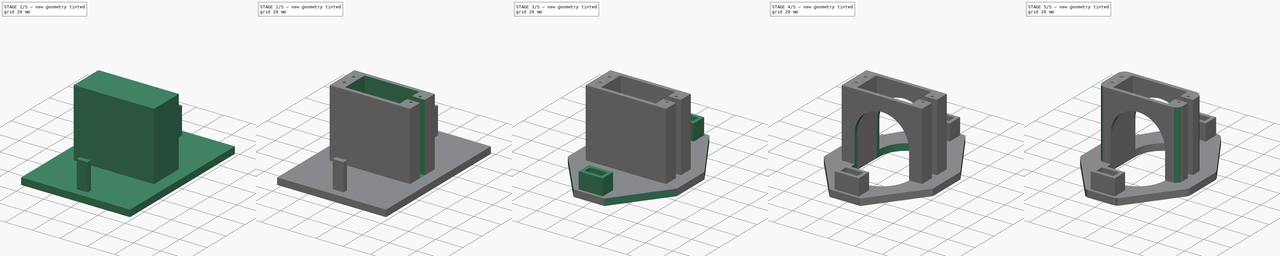
[diagram: build sequence overview — one tinted view per stage of 5, left to right]
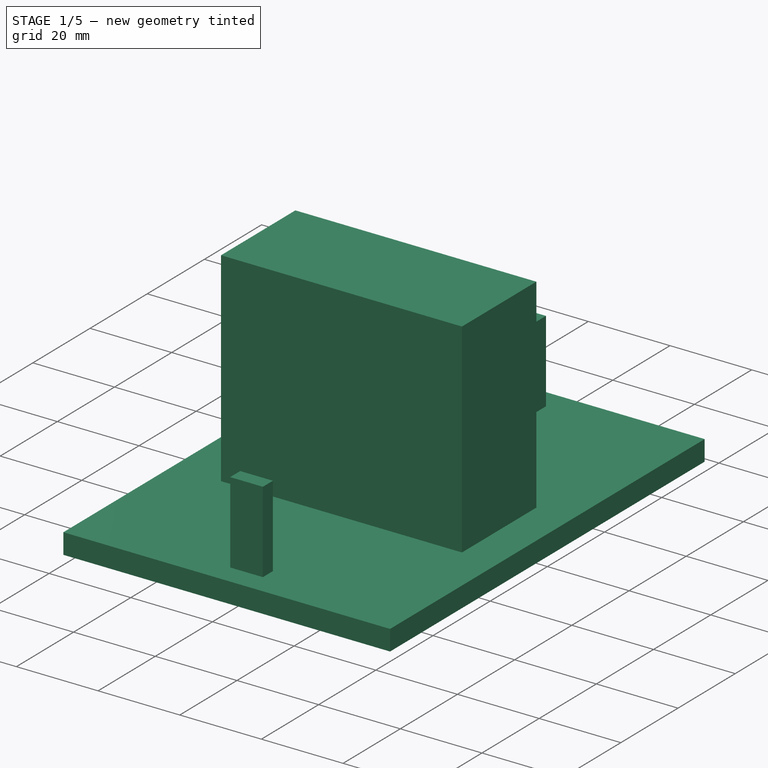
[diagram: stage 1 of 5 — iso view after this stage's code; geometry added in this stage tinted green]
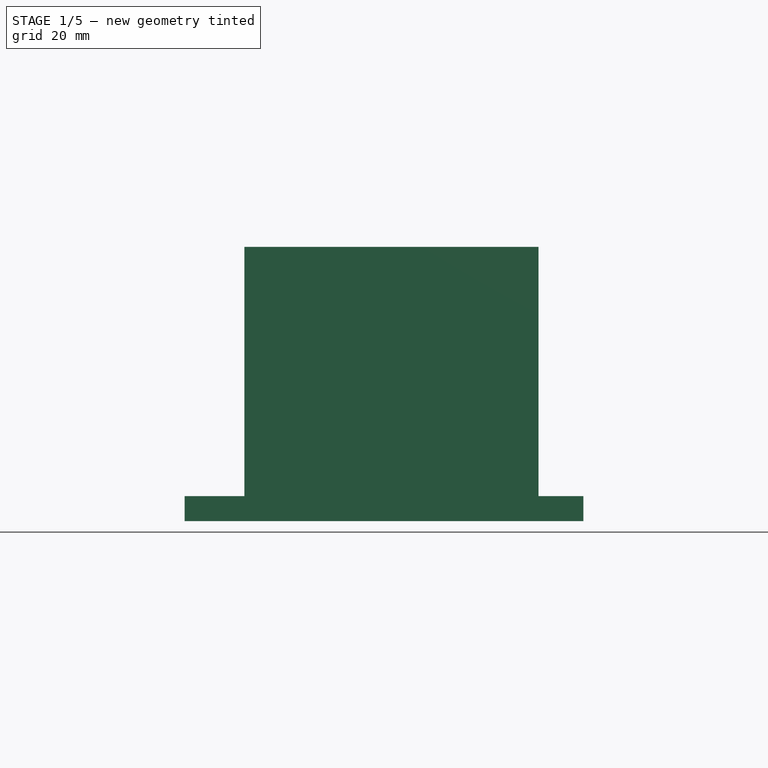
[diagram: stage 1 of 5 — front view after this stage's code; geometry added in this stage tinted green]
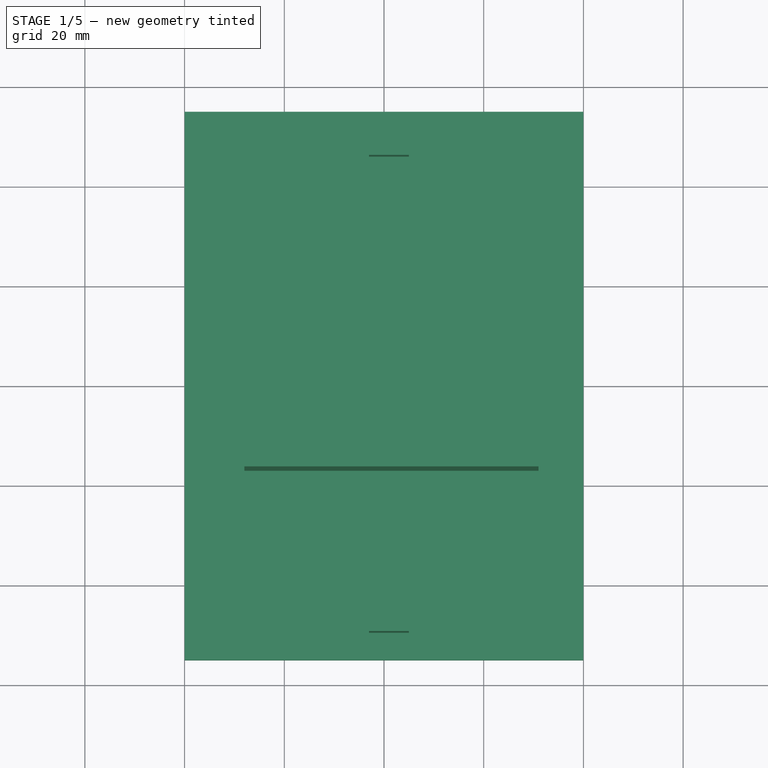
[diagram: stage 1 of 5 — top view after this stage's code; geometry added in this stage tinted green]
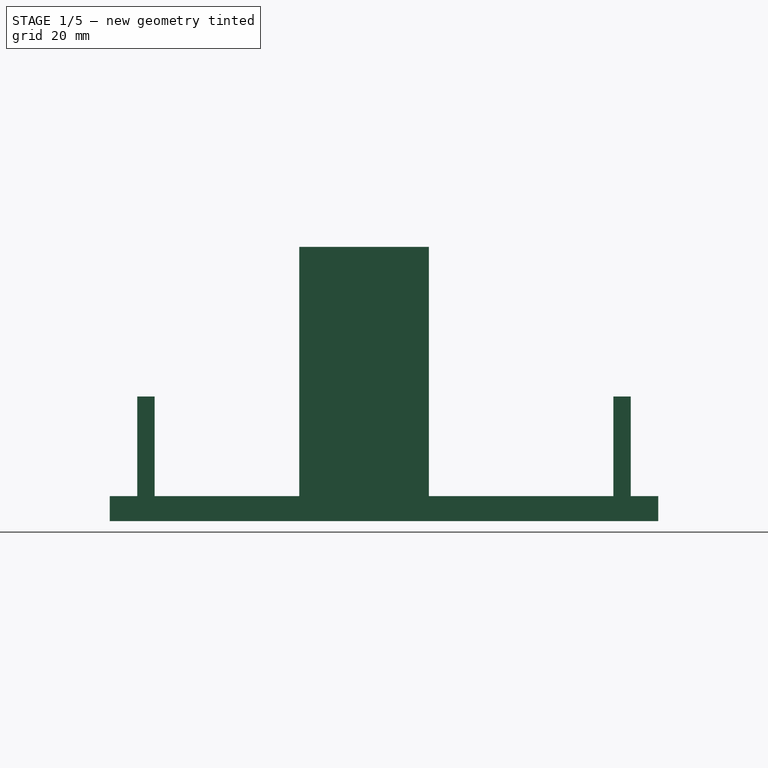
[diagram: stage 1 of 5 — right view after this stage's code; geometry added in this stage tinted green]
FCSTD DOCUMENT  (FreeCAD 0.21R33771 (Git))
Label: support_servomoteur-v2
License: All rights reserved
LicenseURL: https://en.wikipedia.org/wiki/All_rights_reserved
objects: Sketcher::SketchObject×13, PartDesign::Pocket×9, PartDesign::Pad×4, PartDesign::Fillet×2, PartDesign::Body×1
note: 44 computed .brp shape members not serialized (recipe doc carries the construction recipe); baked Part::Feature solids carry a one-line shape summary decoded from their .brp

FEATURE [Sketcher::SketchObject] Sketch
  FullyConstrained = true
  MapMode = 5
  Support = -> [XY_Plane]
  sketch-geometry (4):
    g0: LineSegment StartX=-40 StartY=-55 StartZ=0 EndX=40 EndY=-55 EndZ=0
    g1: LineSegment StartX=40 StartY=-55 StartZ=0 EndX=40 EndY=55 EndZ=0
    g2: LineSegment StartX=40 StartY=55 StartZ=0 EndX=-40 EndY=55 EndZ=0
    g3: LineSegment StartX=-40 StartY=55 StartZ=0 EndX=-40 EndY=-55 EndZ=0
  constraints (11):
    c: Coincident(g0,g1)
    c: Coincident(g1,g2)
    c: Coincident(g2,g3)
    c: Coincident(g3,g0)
    c: Horizontal(g0)
    c: Horizontal(g2)
    c: Vertical(g1)
    c: Vertical(g3)
    c: DistanceX(g2,g2) = 80
    c: DistanceY(g1,g1) = 110
    c: Symmetric(g2,g0,g-1)
FEATURE [PartDesign::Pad] Pad
  Direction = (0,0,1)
  Length = 5
  Length2 = 10
  Profile = -> Sketch
  ReferenceAxis = -> Sketch [N_Axis]
  Type = 0
FEATURE [Sketcher::SketchObject] Sketch001
  ExternalGeometry = -> [Pad]
  FullyConstrained = true
  MapMode = 5
  Placement = pos=(0,0,5) rot=(0,0,1;0rad)
  Support = -> [Pad]
  sketch-geometry (8):
    g0: LineSegment StartX=-3 StartY=49.5 StartZ=0 EndX=5 EndY=49.5 EndZ=0
    g1: LineSegment StartX=5 StartY=49.5 StartZ=0 EndX=5 EndY=46 EndZ=0
    g2: LineSegment StartX=5 StartY=46 StartZ=0 EndX=-3 EndY=46 EndZ=0
    g3: LineSegment StartX=-3 StartY=46 StartZ=0 EndX=-3 EndY=49.5 EndZ=0
    g4: LineSegment StartX=-3 StartY=-46 StartZ=0 EndX=5 EndY=-46 EndZ=0
    g5: LineSegment StartX=5 StartY=-46 StartZ=0 EndX=5 EndY=-49.5 EndZ=0
    g6: LineSegment StartX=5 StartY=-49.5 StartZ=0 EndX=-3 EndY=-49.5 EndZ=0
    g7: LineSegment StartX=-3 StartY=-49.5 StartZ=0 EndX=-3 EndY=-46 EndZ=0
  constraints (23):
    c: Coincident(g0,g1)
    c: Coincident(g1,g2)
    c: Coincident(g2,g3)
    c: Coincident(g3,g0)
    c: Horizontal(g0)
    c: Horizontal(g2)
    c: Vertical(g1)
    c: Vertical(g3)
    c: Coincident(g4,g5)
    c: Coincident(g5,g6)
    c: Coincident(g6,g7)
    c: Coincident(g7,g4)
    c: Horizontal(g4)
    c: Horizontal(g6)
    c: Vertical(g5)
    c: Vertical(g7)
    c: Equal(g1,g5)
    c: Equal(g0,g4)
    c: Symmetric(g2,g4,g-1)
    c: DistanceX(g0,g-4) = 35
    c: DistanceX(g0,g0) = 8
    c: DistanceY(g3,g3) = 3.5
    c: DistanceY(g4,g1) = 92
FEATURE [PartDesign::Pad] Pad001
  BaseFeature = -> Pad
  Direction = (0,0,1)
  Length = 20
  Length2 = 10
  Profile = -> Sketch001
  ReferenceAxis = -> Sketch001 [N_Axis]
  Type = 0
FEATURE [Sketcher::SketchObject] Sketch002
  ExternalGeometry = -> [Pad001]
  FullyConstrained = true
  MapMode = 5
  Placement = pos=(0,0,5) rot=(0,0,1;0rad)
  Support = -> [Pad001]
  sketch-geometry (4):
    g0: LineSegment StartX=-28 StartY=9 StartZ=0 EndX=31 EndY=9 EndZ=0
    g1: LineSegment StartX=31 StartY=9 StartZ=0 EndX=31 EndY=-17 EndZ=0
    g2: LineSegment StartX=31 StartY=-17 StartZ=0 EndX=-28 EndY=-17 EndZ=0
    g3: LineSegment StartX=-28 StartY=-17 StartZ=0 EndX=-28 EndY=9 EndZ=0
  constraints (12):
    c: Coincident(g0,g1)
    c: Coincident(g1,g2)
    c: Coincident(g2,g3)
    c: Coincident(g3,g0)
    c: Horizontal(g0)
    c: Horizontal(g2)
    c: Vertical(g1)
    c: Vertical(g3)
    c: DistanceX(g0,g0) = 59
    c: DistanceY(g1,g1) = 26
    c: DistanceY(g-1,g0) = 9
    c: DistanceX(g0,g-4) = 9
FEATURE [PartDesign::Pad] Pad002
  BaseFeature = -> Pad001
  Direction = (0,0,1)
  Length = 50
  Length2 = 10
  Profile = -> Sketch002
  ReferenceAxis = -> Sketch002 [N_Axis]
  Type = 0
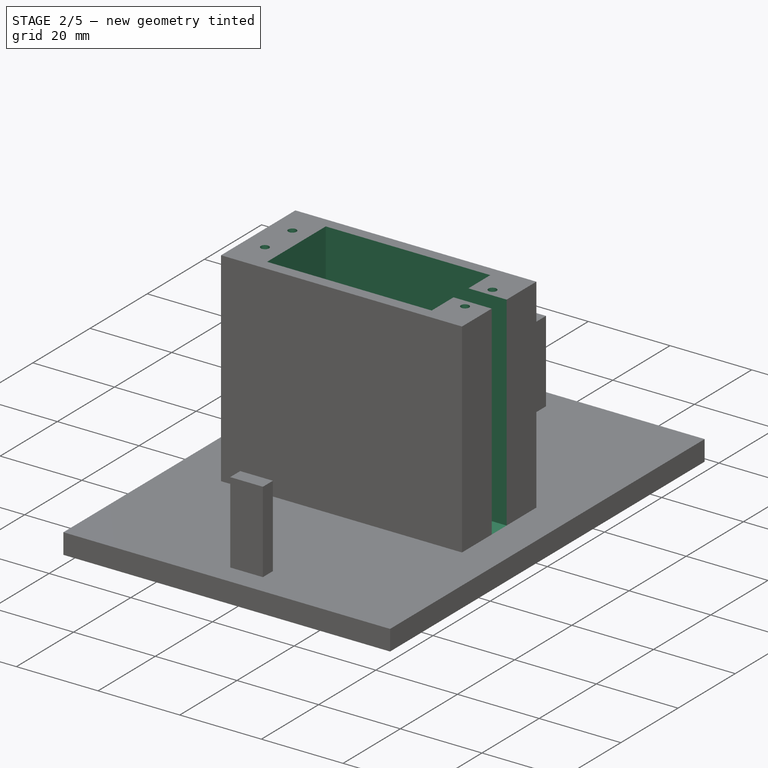
[diagram: stage 2 of 5 — iso view after this stage's code; geometry added in this stage tinted green]
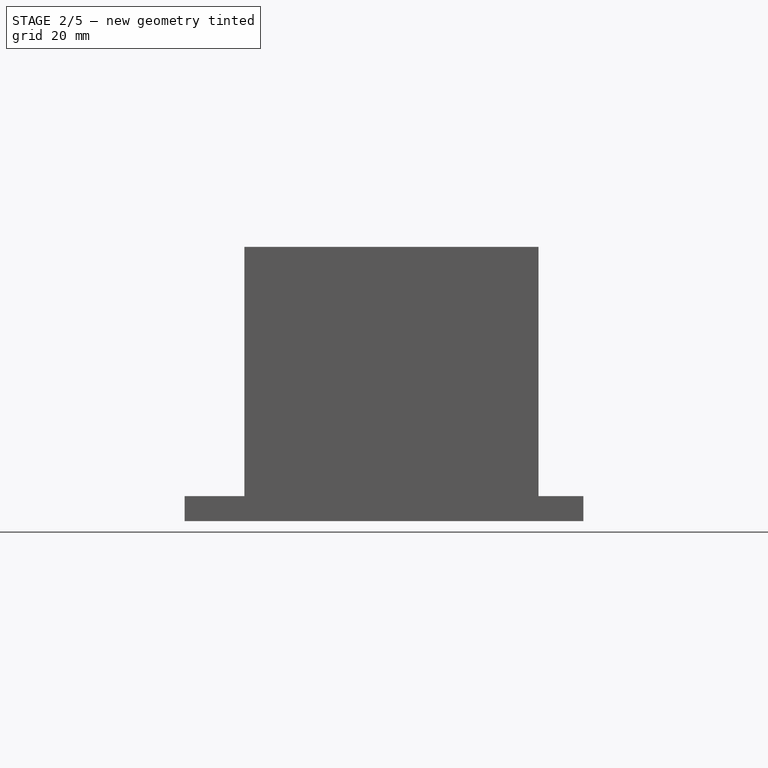
[diagram: stage 2 of 5 — front view after this stage's code; geometry added in this stage tinted green]
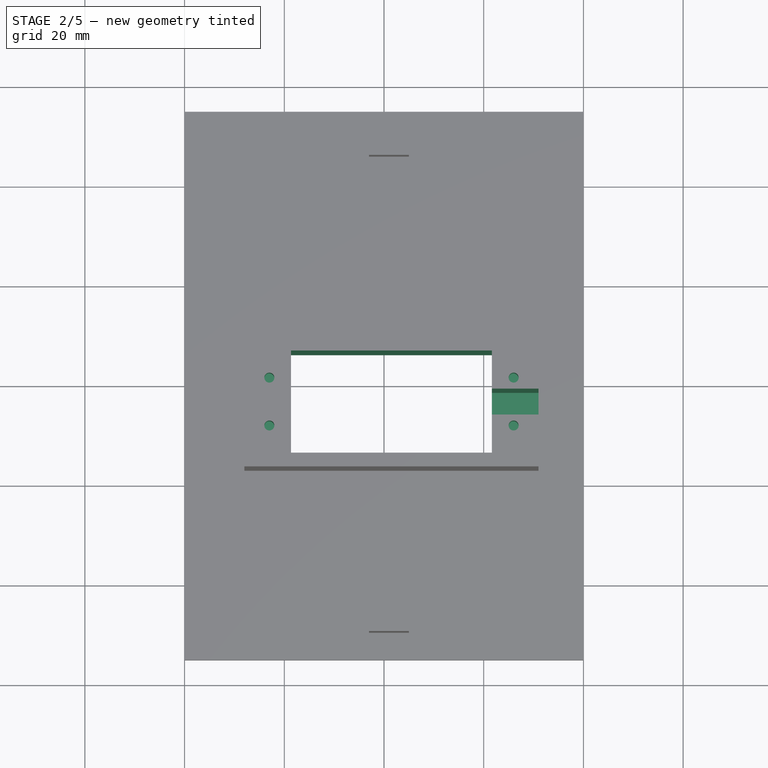
[diagram: stage 2 of 5 — top view after this stage's code; geometry added in this stage tinted green]
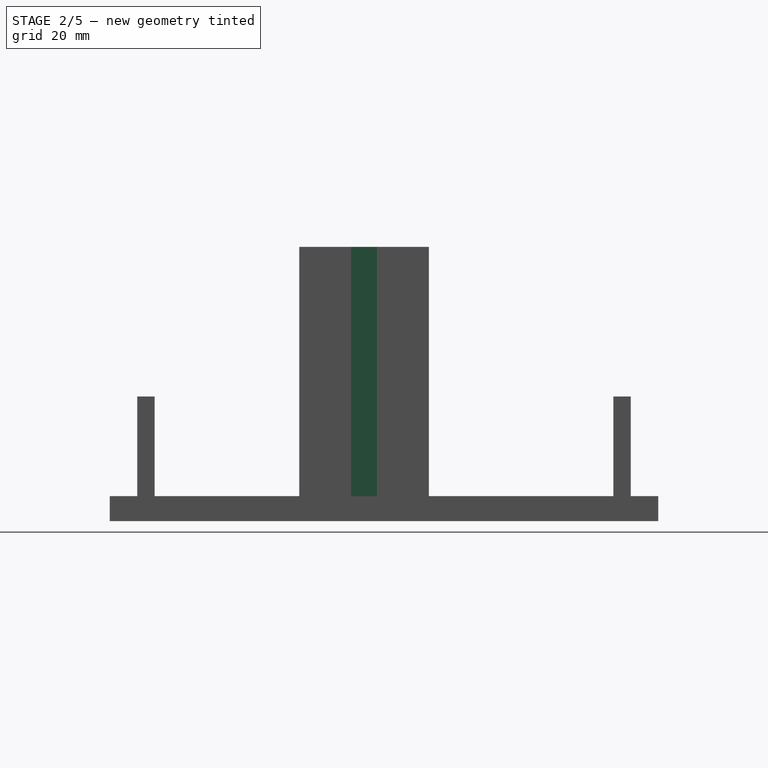
[diagram: stage 2 of 5 — right view after this stage's code; geometry added in this stage tinted green]
FEATURE [Sketcher::SketchObject] Sketch003
  ExternalGeometry = -> [Pad002]
  FullyConstrained = true
  MapMode = 5
  Placement = pos=(0,0,0) rot=(1,0,0;3.14159rad)
  Support = -> [Pad002]
  sketch-geometry (4):
    g0: LineSegment StartX=21.65 StartY=14.25 StartZ=0 EndX=-18.65 EndY=14.25 EndZ=0
    g1: LineSegment StartX=-18.65 StartY=14.25 StartZ=0 EndX=-18.65 EndY=-6.25 EndZ=0
    g2: LineSegment StartX=-18.65 StartY=-6.25 StartZ=0 EndX=21.65 EndY=-6.25 EndZ=0
    g3: LineSegment StartX=21.65 StartY=-6.25 StartZ=0 EndX=21.65 EndY=14.25 EndZ=0
  constraints (14):
    c: Coincident(g0,g1)
    c: Coincident(g1,g2)
    c: Coincident(g2,g3)
    c: Coincident(g3,g0)
    c: Horizontal(g0)
    c: Horizontal(g2)
    c: Vertical(g1)
    c: Vertical(g3)
    c: DistanceX(g2,g2) = 40.3
    c: DistanceY(g3,g3) = 20.5
    c: DistanceY(g0,g-14) = 2.75
    c: DistanceX(g0,g-14) = 9.35
    c: DistanceY(g-14,g-14) = 26
    c: DistanceX(g-11,g-11) = 59
FEATURE [PartDesign::Pocket] Pocket
  BaseFeature = -> Pad002
  Direction = (0,0,1)
  Length = 50
  Length2 = 5
  Profile = -> Sketch003
  ReferenceAxis = -> Sketch003 [N_Axis]
  Type = 1
FEATURE [Sketcher::SketchObject] Sketch004
  ExternalGeometry = -> [Pocket]
  FullyConstrained = true
  MapMode = 5
  Placement = pos=(31,0,0) rot=(0.57735,0.57735,0.57735;2.0944rad)
  Support = -> [Pocket]
  sketch-geometry (6):
    g0: LineSegment StartX=-6.6 StartY=5 StartZ=0 EndX=-1.4 EndY=5 EndZ=0
    g1: LineSegment StartX=-1.4 StartY=5 StartZ=0 EndX=-1.4 EndY=55 EndZ=0
    g2: LineSegment StartX=-1.4 StartY=55 StartZ=0 EndX=-6.6 EndY=55 EndZ=0
    g3: LineSegment StartX=-6.6 StartY=55 StartZ=0 EndX=-6.6 EndY=5 EndZ=0
    g4: LineSegment StartX=-17 StartY=55 StartZ=0 EndX=-6.6 EndY=55 EndZ=0
    g5: LineSegment StartX=-1.4 StartY=55 StartZ=0 EndX=9 EndY=55 EndZ=0
  constraints (16):
    c: Coincident(g0,g1)
    c: Coincident(g1,g2)
    c: Coincident(g2,g3)
    c: Coincident(g3,g0)
    c: Horizontal(g0)
    c: Horizontal(g2)
    c: Vertical(g1)
    c: Vertical(g3)
    c: PointOnObject(g0,g-6)
    c: PointOnObject(g1,g-3)
    c: DistanceX(g2,g2) = 5.2
    c: Coincident(g4,g-5)
    c: Coincident(g4,g2)
    c: Coincident(g5,g1)
    c: Coincident(g5,g-4)
    c: Equal(g5,g4)
FEATURE [PartDesign::Pocket] Pocket001
  BaseFeature = -> Pocket
  Direction = (-1,0,0)
  Length = 10
  Length2 = 5
  Profile = -> Sketch004
  ReferenceAxis = -> Sketch004 [N_Axis]
  Type = 0
FEATURE [Sketcher::SketchObject] Sketch005
  ExternalGeometry = -> [Pocket001]
  FullyConstrained = true
  MapMode = 5
  Placement = pos=(0,0,55) rot=(0,0,1;0rad)
  Support = -> [Pocket001]
  sketch-geometry (8):
    g0: Circle CenterX=-23 CenterY=0.8 CenterZ=0 NormalX=0 NormalY=0 NormalZ=1 AngleXU=0 Radius=1
    g1: Circle CenterX=-23 CenterY=-8.8 CenterZ=0 NormalX=0 NormalY=0 NormalZ=1 AngleXU=0 Radius=1
    g2: Circle CenterX=26 CenterY=-8.8 CenterZ=0 NormalX=0 NormalY=0 NormalZ=1 AngleXU=0 Radius=1
    g3: Circle CenterX=26 CenterY=0.8 CenterZ=0 NormalX=0 NormalY=0 NormalZ=1 AngleXU=0 Radius=1
    g4: LineSegment StartX=-23 StartY=0.8 StartZ=0 EndX=-28 EndY=0.8 EndZ=0
    g5: LineSegment StartX=-23 StartY=0.8 StartZ=0 EndX=-23 EndY=9 EndZ=0
    g6: LineSegment StartX=-23 StartY=-8.8 StartZ=0 EndX=-23 EndY=-17 EndZ=0
    g7: LineSegment StartX=26 StartY=0.8 StartZ=0 EndX=31 EndY=0.8 EndZ=0
  constraints (24):
    c: Equal(g3,g2)
    c: Equal(g0,g3)
    c: Equal(g3,g1)
    c: Vertical(g3,g2)
    c: Vertical(g0,g1)
    c: Horizontal(g0,g3)
    c: Horizontal(g1,g2)
    c: DistanceY(g2,g3) = 9.6
    c: DistanceX(g0,g3) = 49
    c: Coincident(g4,g0)
    c: PointOnObject(g4,g-5)
    c: Horizontal(g4)
    c: Coincident(g5,g0)
    c: PointOnObject(g5,g-3)
    c: Vertical(g5)
    c: Coincident(g6,g1)
    c: PointOnObject(g6,g-6)
    c: Vertical(g6)
    c: Equal(g5,g6)
    c: Diameter(g0) = 2
    c: Coincident(g7,g3)
    c: PointOnObject(g7,g-4)
    c: Horizontal(g7)
    c: Equal(g7,g4)
FEATURE [PartDesign::Pocket] Pocket002
  BaseFeature = -> Pocket001
  Direction = (0,0,-1)
  Length = 10
  Length2 = 5
  Profile = -> Sketch005
  ReferenceAxis = -> Sketch005 [N_Axis]
  Type = 0
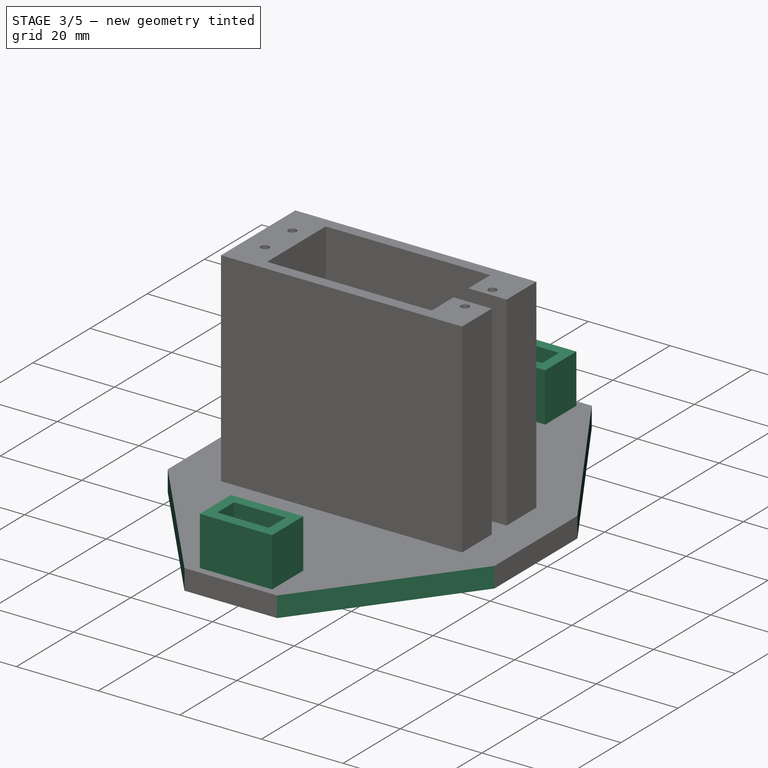
[diagram: stage 3 of 5 — iso view after this stage's code; geometry added in this stage tinted green]
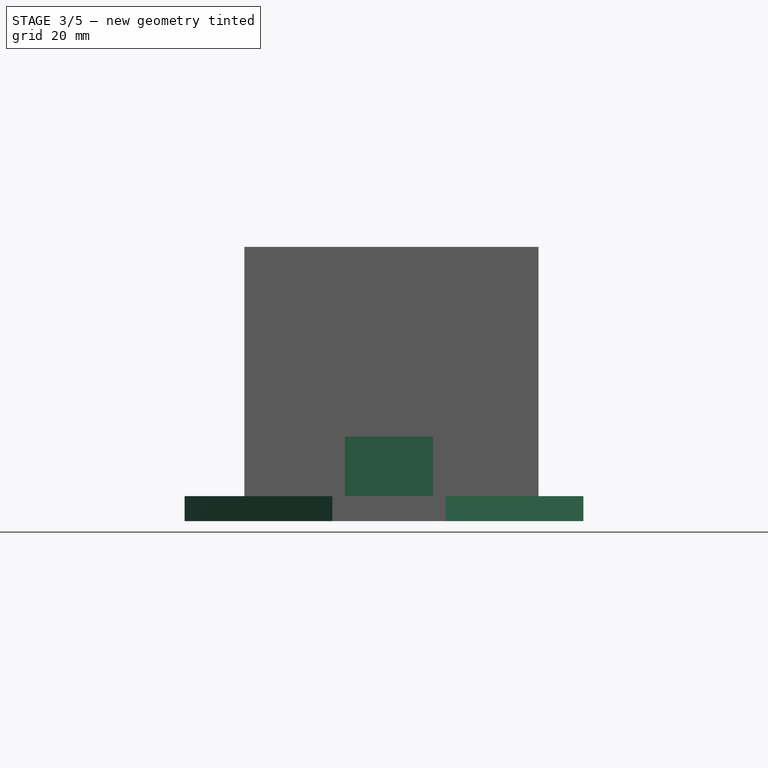
[diagram: stage 3 of 5 — front view after this stage's code; geometry added in this stage tinted green]
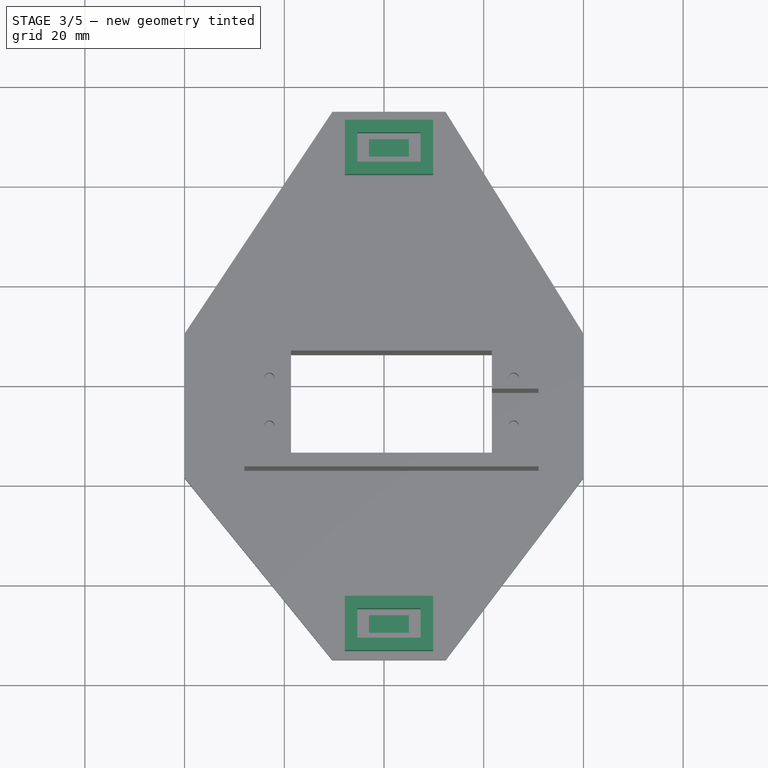
[diagram: stage 3 of 5 — top view after this stage's code; geometry added in this stage tinted green]
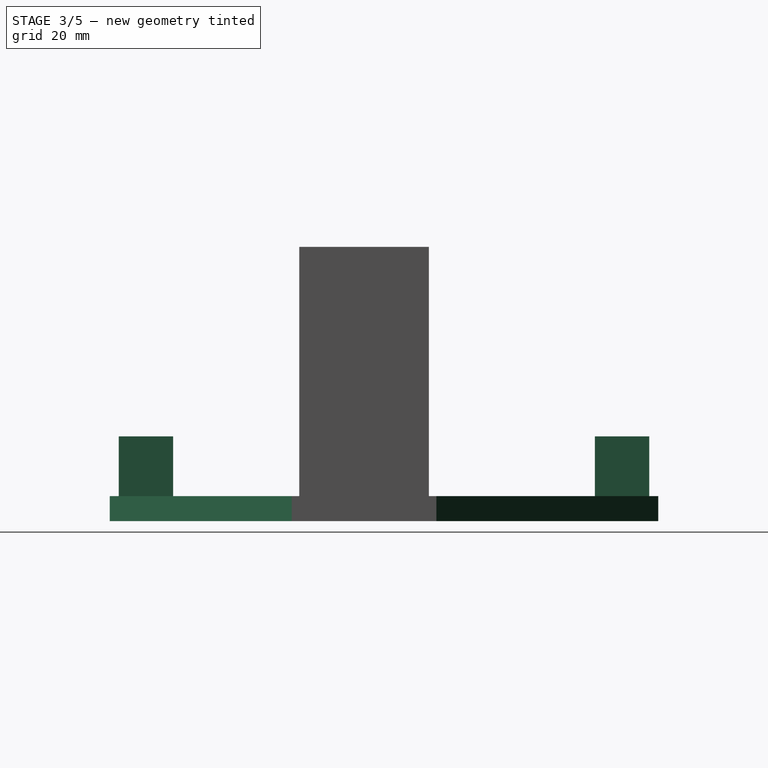
[diagram: stage 3 of 5 — right view after this stage's code; geometry added in this stage tinted green]
FEATURE [Sketcher::SketchObject] Sketch006
  ExternalGeometry = -> [Pocket002]
  FullyConstrained = true
  MapMode = 5
  Placement = pos=(0,0,5) rot=(0,0,1;0rad)
  Support = -> [Pocket002]
  sketch-geometry (32):
    g0: LineSegment StartX=-7.85 StartY=53.2 StartZ=0 EndX=9.85 EndY=53.2 EndZ=0
    g1: LineSegment StartX=9.85 StartY=53.2 StartZ=0 EndX=9.85 EndY=42.3 EndZ=0
    g2: LineSegment StartX=9.85 StartY=42.3 StartZ=0 EndX=-7.85 EndY=42.3 EndZ=0
    g3: LineSegment StartX=-7.85 StartY=42.3 StartZ=0 EndX=-7.85 EndY=53.2 EndZ=0
    g4: LineSegment StartX=-5.35 StartY=50.7 StartZ=0 EndX=7.35 EndY=50.7 EndZ=0
    g5: LineSegment StartX=7.35 StartY=50.7 StartZ=0 EndX=7.35 EndY=44.8 EndZ=0
    g6: LineSegment StartX=7.35 StartY=44.8 StartZ=0 EndX=-5.35 EndY=44.8 EndZ=0
    g7: LineSegment StartX=-5.35 StartY=44.8 StartZ=0 EndX=-5.35 EndY=50.7 EndZ=0
    g8: LineSegment StartX=-7.85 StartY=-42.3 StartZ=0 EndX=9.85 EndY=-42.3 EndZ=0
    g9: LineSegment StartX=9.85 StartY=-42.3 StartZ=0 EndX=9.85 EndY=-53.2 EndZ=0
    g10: LineSegment StartX=9.85 StartY=-53.2 StartZ=0 EndX=-7.85 EndY=-53.2 EndZ=0
    g11: LineSegment StartX=-7.85 StartY=-53.2 StartZ=0 EndX=-7.85 EndY=-42.3 EndZ=0
    g12: LineSegment StartX=-5.35 StartY=-44.8 StartZ=0 EndX=7.35 EndY=-44.8 EndZ=0
    g13: LineSegment StartX=7.35 StartY=-44.8 StartZ=0 EndX=7.35 EndY=-50.7 EndZ=0
    g14: LineSegment StartX=7.35 StartY=-50.7 StartZ=0 EndX=-5.35 EndY=-50.7 EndZ=0
    g15: LineSegment StartX=-5.35 StartY=-50.7 StartZ=0 EndX=-5.35 EndY=-44.8 EndZ=0
    g16: LineSegment StartX=5 StartY=-46 StartZ=0 EndX=5 EndY=-44.8 EndZ=0
    g17: LineSegment StartX=5 StartY=-49.5 StartZ=0 EndX=5 EndY=-50.7 EndZ=0
    g18: LineSegment StartX=5 StartY=-46 StartZ=0 EndX=7.35 EndY=-46 EndZ=0
    g19: LineSegment StartX=-3 StartY=-46 StartZ=0 EndX=-5.35 EndY=-46 EndZ=0
    g20: LineSegment StartX=7.35 StartY=-44.8 StartZ=0 EndX=7.35 EndY=-42.3 EndZ=0
    g21: LineSegment StartX=7.35 StartY=-44.8 StartZ=0 EndX=9.85 EndY=-44.8 EndZ=0
    g22: LineSegment StartX=-5.35 StartY=-44.8 StartZ=0 EndX=-7.85 EndY=-44.8 EndZ=0
    g23: LineSegment StartX=7.35 StartY=-50.7 StartZ=0 EndX=7.35 EndY=-53.2 EndZ=0
    g24: LineSegment StartX=-5.35 StartY=50.7 StartZ=0 EndX=-7.85 EndY=50.7 EndZ=0
    g25: LineSegment StartX=-3 StartY=49.5 StartZ=0 EndX=-5.35 EndY=49.5 EndZ=0
    g26: LineSegment StartX=5 StartY=49.5 StartZ=0 EndX=7.35 EndY=49.5 EndZ=0
    g27: LineSegment StartX=7.35 StartY=50.7 StartZ=0 EndX=9.85 EndY=50.7 EndZ=0
    g28: LineSegment StartX=7.35 StartY=50.7 StartZ=0 EndX=7.35 EndY=53.2 EndZ=0
    g29: LineSegment StartX=7.35 StartY=44.8 StartZ=0 EndX=7.35 EndY=42.3 EndZ=0
    g30: LineSegment StartX=5 StartY=49.5 StartZ=0 EndX=5 EndY=50.7 EndZ=0
    g31: LineSegment StartX=5 StartY=46 StartZ=0 EndX=5 EndY=44.8 EndZ=0
  constraints (96):
    c: Coincident(g0,g1)
    c: Coincident(g1,g2)
    c: Coincident(g2,g3)
    c: Coincident(g3,g0)
    c: Horizontal(g0)
    c: Horizontal(g2)
    c: Vertical(g1)
    c: Vertical(g3)
    c: Coincident(g4,g5)
    c: Coincident(g5,g6)
    c: Coincident(g6,g7)
    c: Coincident(g7,g4)
    c: Horizontal(g4)
    c: Horizontal(g6)
    c: Vertical(g5)
    c: Vertical(g7)
    c: Coincident(g8,g9)
    c: Coincident(g9,g10)
    c: Coincident(g10,g11)
    c: Coincident(g11,g8)
    c: Horizontal(g8)
    c: Horizontal(g10)
    c: Vertical(g9)
    c: Vertical(g11)
    c: Coincident(g12,g13)
    c: Coincident(g13,g14)
    c: Coincident(g14,g15)
    c: Coincident(g15,g12)
    c: Horizontal(g12)
    c: Horizontal(g14)
    c: Vertical(g13)
    c: Vertical(g15)
    c: DistanceX(g12,g12) = 12.7
    c: DistanceY(g13,g13) = 5.9
    c: Equal(g12,g6)
    c: Equal(g13,g5)
    c: DistanceY(g12,g8) = 2.5
    c: DistanceX(g12,g8) = 2.5
    c: Coincident(g16,g-8)
    c: PointOnObject(g16,g12)
    c: Vertical(g16)
    c: Coincident(g17,g-9)
    c: PointOnObject(g17,g14)
    c: Vertical(g17)
    c: Coincident(g18,g16)
    c: PointOnObject(g18,g13)
    c: Horizontal(g18)
    c: Coincident(g19,g-10)
    c: PointOnObject(g19,g15)
    c: Horizontal(g19)
    c: Coincident(g20,g12)
    c: PointOnObject(g20,g8)
    c: Vertical(g20)
    c: Coincident(g21,g12)
    c: PointOnObject(g21,g9)
    c: Horizontal(g21)
    c: Coincident(g22,g12)
    c: PointOnObject(g22,g11)
    c: Horizontal(g22)
    c: Coincident(g23,g13)
    c: PointOnObject(g23,g10)
    c: Vertical(g23)
    c: Equal(g16,g17)
    c: Equal(g18,g19)
    c: Equal(g22,g21)
    c: Equal(g20,g23)
    c: Equal(g8,g2)
    c: Equal(g9,g1)
    c: Coincident(g24,g4)
    c: PointOnObject(g24,g3)
    c: Horizontal(g24)
    c: Coincident(g25,g-4)
    c: PointOnObject(g25,g7)
    c: Horizontal(g25)
    c: Coincident(g26,g-6)
    c: PointOnObject(g26,g5)
    c: Horizontal(g26)
    c: Coincident(g27,g4)
    c: PointOnObject(g27,g1)
    c: Horizontal(g27)
    c: Coincident(g28,g4)
    c: PointOnObject(g28,g0)
    c: Vertical(g28)
    c: Coincident(g29,g5)
    c: PointOnObject(g29,g2)
    c: Vertical(g29)
    c: Coincident(g30,g26)
    c: PointOnObject(g30,g4)
    c: Coincident(g31,g-6)
    c: PointOnObject(g31,g6)
    c: Vertical(g30)
    c: Vertical(g31)
    c: Equal(g30,g31)
    c: Equal(g26,g25)
    c: Equal(g24,g27)
    c: Equal(g28,g29)
FEATURE [PartDesign::Pad] Pad003
  BaseFeature = -> Pocket002
  Direction = (0,0,1)
  Length = 12
  Length2 = 10
  Profile = -> Sketch006
  ReferenceAxis = -> Sketch006 [N_Axis]
  Type = 0
FEATURE [Sketcher::SketchObject] Sketch007
  ExternalGeometry = -> [Pad003]
  FullyConstrained = true
  MapMode = 5
  Placement = pos=(0,0,25) rot=(0,0,1;0rad)
  Support = -> [Pad003]
  sketch-geometry (8):
    g0: LineSegment StartX=-3 StartY=-46 StartZ=0 EndX=5 EndY=-46 EndZ=0
    g1: LineSegment StartX=5 StartY=-46 StartZ=0 EndX=5 EndY=-49.5 EndZ=0
    g2: LineSegment StartX=5 StartY=-49.5 StartZ=0 EndX=-3 EndY=-49.5 EndZ=0
    g3: LineSegment StartX=-3 StartY=-49.5 StartZ=0 EndX=-3 EndY=-46 EndZ=0
    g4: LineSegment StartX=-3 StartY=49.5 StartZ=0 EndX=5 EndY=49.5 EndZ=0
    g5: LineSegment StartX=5 StartY=49.5 StartZ=0 EndX=5 EndY=46 EndZ=0
    g6: LineSegment StartX=5 StartY=46 StartZ=0 EndX=-3 EndY=46 EndZ=0
    g7: LineSegment StartX=-3 StartY=46 StartZ=0 EndX=-3 EndY=49.5 EndZ=0
  constraints (20):
    c: Coincident(g0,g1)
    c: Coincident(g1,g2)
    c: Coincident(g2,g3)
    c: Coincident(g3,g0)
    c: Horizontal(g0)
    c: Horizontal(g2)
    c: Vertical(g1)
    c: Vertical(g3)
    c: Coincident(g0,g-10)
    c: Coincident(g1,g-9)
    c: Coincident(g4,g5)
    c: Coincident(g5,g6)
    c: Coincident(g6,g7)
    c: Coincident(g7,g4)
    c: Horizontal(g4)
    c: Horizontal(g6)
    c: Vertical(g5)
    c: Vertical(g7)
    c: Coincident(g4,g-6)
    c: Coincident(g5,g-5)
FEATURE [PartDesign::Pocket] Pocket003
  BaseFeature = -> Pad003
  Direction = (0,0,-1)
  Length = 20
  Length2 = 5
  Profile = -> Sketch007
  ReferenceAxis = -> Sketch007 [N_Axis]
  Type = 0
FEATURE [Sketcher::SketchObject] Sketch008
  ExternalGeometry = -> [Pocket003]
  FullyConstrained = true
  MapMode = 5
  Placement = pos=(0,0,5) rot=(0,0,1;0rad)
  Support = -> [Pocket003]
  sketch-geometry (12):
    g0: LineSegment StartX=-40 StartY=55 StartZ=0 EndX=-10.35 EndY=55 EndZ=0
    g1: LineSegment StartX=-10.35 StartY=55 StartZ=0 EndX=-40 EndY=10.5 EndZ=0
    g2: LineSegment StartX=-40 StartY=55 StartZ=0 EndX=-40 EndY=10.5 EndZ=0
    g3: LineSegment StartX=-40 StartY=-18.5 StartZ=0 EndX=-40 EndY=-55 EndZ=0
    g4: LineSegment StartX=-40 StartY=-55 StartZ=0 EndX=-10.35 EndY=-55 EndZ=0
    g5: LineSegment StartX=-10.35 StartY=-55 StartZ=0 EndX=-40 EndY=-18.5 EndZ=0
    g6: LineSegment StartX=40 StartY=-18.5 StartZ=0 EndX=40 EndY=-55 EndZ=0
    g7: LineSegment StartX=40 StartY=-55 StartZ=0 EndX=12.35 EndY=-55 EndZ=0
    g8: LineSegment StartX=40 StartY=10.5 StartZ=0 EndX=40 EndY=55 EndZ=0
    g9: LineSegment StartX=40 StartY=55 StartZ=0 EndX=12.35 EndY=55 EndZ=0
    g10: LineSegment StartX=12.35 StartY=55 StartZ=0 EndX=40 EndY=10.5 EndZ=0
    g11: LineSegment StartX=40 StartY=-18.5 StartZ=0 EndX=12.35 EndY=-55 EndZ=0
  constraints (32):
    c: Coincident(g0,g-6)
    c: PointOnObject(g0,g-3)
    c: Coincident(g1,g0)
    c: PointOnObject(g1,g-6)
    c: Coincident(g2,g0)
    c: Coincident(g2,g1)
    c: PointOnObject(g3,g-6)
    c: Coincident(g3,g-6)
    c: Coincident(g4,g3)
    c: PointOnObject(g4,g-5)
    c: Coincident(g5,g4)
    c: Coincident(g5,g3)
    c: PointOnObject(g7,g-5)
    c: Coincident(g6,g-5)
    c: Coincident(g7,g6)
    c: PointOnObject(g8,g-4)
    c: Coincident(g8,g-4)
    c: Coincident(g9,g8)
    c: PointOnObject(g9,g-3)
    c: Coincident(g10,g9)
    c: Coincident(g10,g8)
    c: Coincident(g11,g6)
    c: Coincident(g11,g7)
    c: Vertical(g0,g4)
    c: Vertical(g7,g9)
    c: Horizontal(g8,g1)
    c: Horizontal(g6,g3)
    c: DistanceX(g-17,g9) = 2.5
    c: DistanceY(g-10,g8) = 1.5
    c: DistanceY(g6,g-11) = 1.5
    c: DistanceX(g0,g-18) = 2.5
    c: PointOnObject(g6,g-4)
FEATURE [PartDesign::Pocket] Pocket004
  BaseFeature = -> Pocket003
  Direction = (0,0,-1)
  Length = 5
  Length2 = 5
  Profile = -> Sketch008
  ReferenceAxis = -> Sketch008 [N_Axis]
  Type = 0
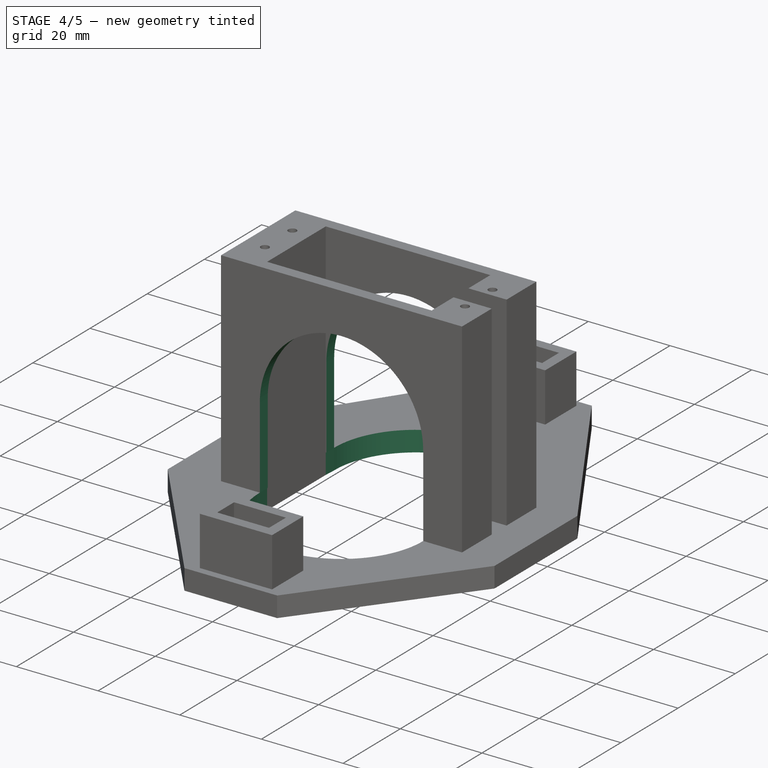
[diagram: stage 4 of 5 — iso view after this stage's code; geometry added in this stage tinted green]
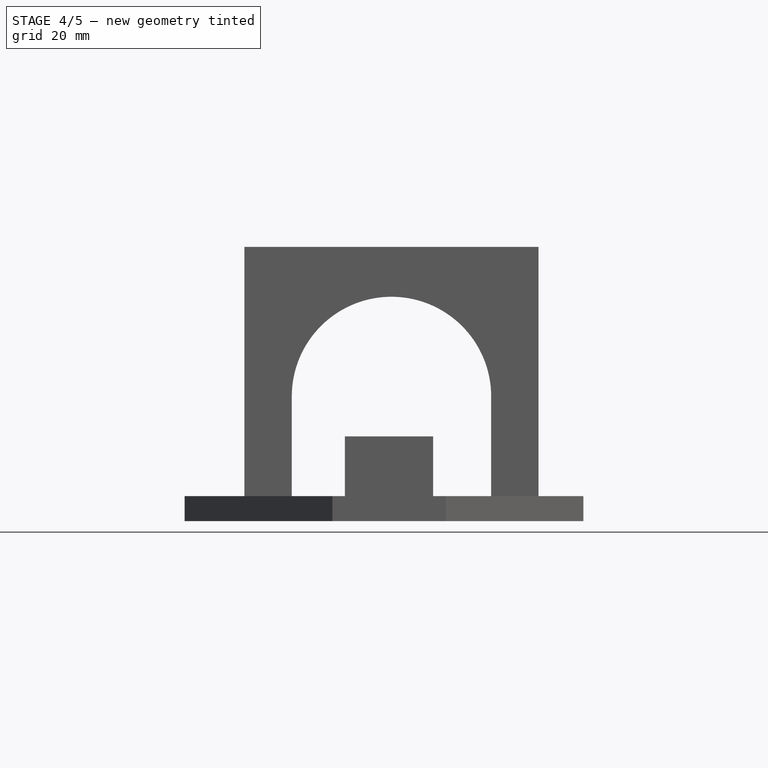
[diagram: stage 4 of 5 — front view after this stage's code; geometry added in this stage tinted green]
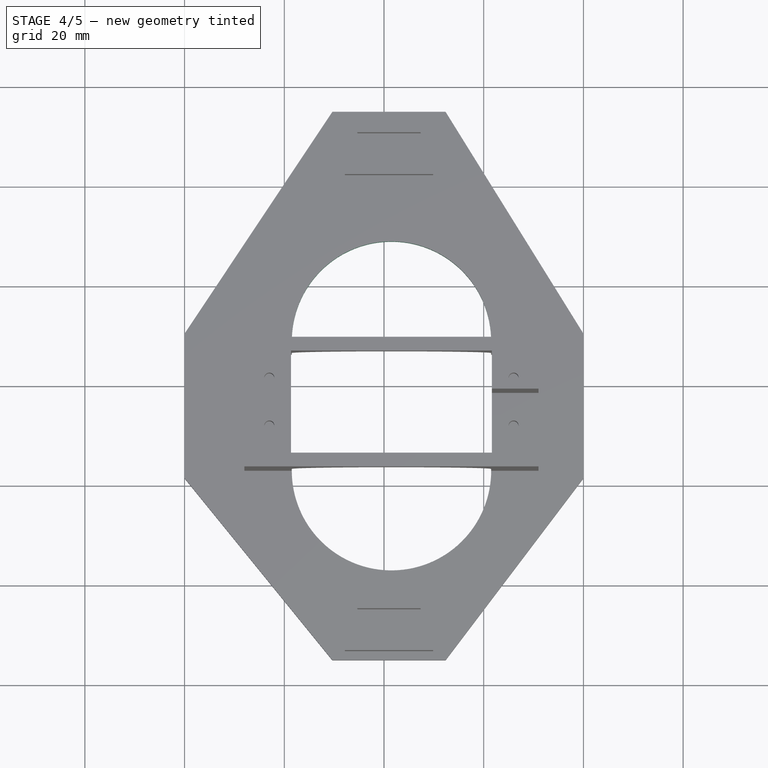
[diagram: stage 4 of 5 — top view after this stage's code; geometry added in this stage tinted green]
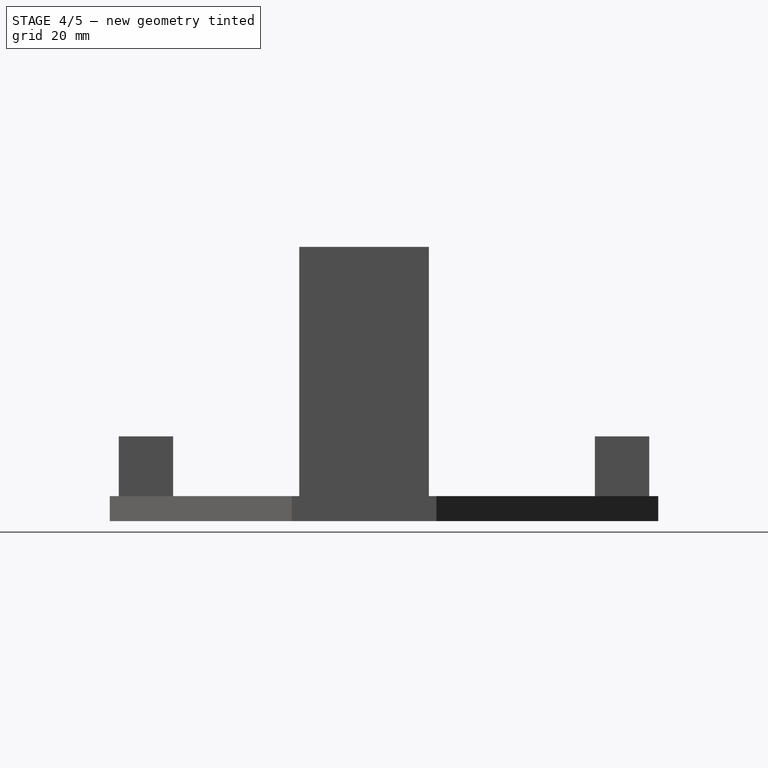
[diagram: stage 4 of 5 — right view after this stage's code; geometry added in this stage tinted green]
FEATURE [Sketcher::SketchObject] Sketch009
  ExternalGeometry = -> [Pocket004]
  FullyConstrained = true
  MapMode = 5
  Placement = pos=(0,0,5) rot=(0,0,1;0rad)
  Support = -> [Pocket004]
  sketch-geometry (6):
    g0: LineSegment StartX=-18.5 StartY=9 StartZ=0 EndX=21.5 EndY=9 EndZ=0
    g1: LineSegment StartX=-18.5 StartY=-17 StartZ=0 EndX=21.5 EndY=-17 EndZ=0
    g2: ArcOfCircle CenterX=1.5 CenterY=9 CenterZ=0 NormalX=0 NormalY=0 NormalZ=1 AngleXU=0 Radius=20 StartAngle=6.28319 EndAngle=9.42478
    g3: ArcOfCircle CenterX=1.5 CenterY=-17 CenterZ=0 NormalX=0 NormalY=0 NormalZ=1 AngleXU=0 Radius=20 StartAngle=3.14159 EndAngle=6.28319
    g4: LineSegment StartX=-28 StartY=9 StartZ=0 EndX=-18.5 EndY=9 EndZ=0
    g5: LineSegment StartX=21.5 StartY=9 StartZ=0 EndX=31 EndY=9 EndZ=0
  constraints (18):
    c: PointOnObject(g1,g-3)
    c: PointOnObject(g1,g-3)
    c: Vertical(g0,g1)
    c: Vertical(g0,g1)
    c: Coincident(g2,g0)
    c: Coincident(g2,g0)
    c: Coincident(g3,g1)
    c: Coincident(g3,g1)
    c: DistanceX(g0,g0) = 40
    c: PointOnObject(g0,g-4)
    c: PointOnObject(g0,g-4)
    c: Coincident(g4,g-4)
    c: Coincident(g4,g0)
    c: Coincident(g5,g0)
    c: Coincident(g5,g-4)
    c: Equal(g5,g4)
    c: Diameter(g2) = 40
    c: Equal(g2,g3)
FEATURE [PartDesign::Pocket] Pocket005
  BaseFeature = -> Pocket004
  Direction = (0,0,-1)
  Length = 5
  Length2 = 5
  Profile = -> Sketch009
  ReferenceAxis = -> Sketch009 [N_Axis]
  Type = 0
FEATURE [Sketcher::SketchObject] Sketch010
  ExternalGeometry = -> [Pocket005]
  FullyConstrained = true
  MapMode = 5
  Placement = pos=(0,9,0) rot=(0,0.707107,0.707107;3.14159rad)
  Support = -> [Pocket005]
  sketch-geometry (5):
    g0: LineSegment StartX=-21.5 StartY=5 StartZ=0 EndX=-21.5 EndY=25 EndZ=0
    g1: LineSegment StartX=18.5 StartY=5 StartZ=0 EndX=18.5 EndY=25 EndZ=0
    g2: LineSegment StartX=-21.5 StartY=25 StartZ=0 EndX=18.5 EndY=25 EndZ=0
    g3: ArcOfCircle CenterX=-1.5 CenterY=25 CenterZ=0 NormalX=0 NormalY=0 NormalZ=1 AngleXU=0 Radius=20 StartAngle=0 EndAngle=3.14159
    g4: LineSegment StartX=-21.5 StartY=5 StartZ=0 EndX=18.5 EndY=5 EndZ=0
  constraints (14):
    c: Coincident(g0,g-3)
    c: Vertical(g0)
    c: Coincident(g1,g-3)
    c: Vertical(g1)
    c: Horizontal(g1,g0)
    c: Coincident(g2,g0)
    c: Coincident(g2,g1)
    c: Coincident(g3,g0)
    c: Coincident(g3,g1)
    c: PointOnObject(g3,g2)
    c: DistanceY(g1,g1) = 20
    c: Coincident(g4,g0)
    c: PointOnObject(g4,g1)
    c: Horizontal(g4)
FEATURE [PartDesign::Pocket] Pocket006
  BaseFeature = -> Pocket005
  Direction = (0,-1,2e-16)
  Length = 26
  Length2 = 5
  Profile = -> Sketch010
  ReferenceAxis = -> Sketch010 [N_Axis]
  Type = 0
FEATURE [Sketcher::SketchObject] Sketch011
  ExternalGeometry = -> [Pocket006,Sketch003]
  FullyConstrained = true
  MapMode = 5
  Placement = pos=(0,0,0) rot=(1,0,0;3.14159rad)
  Support = -> [Pocket006]
  sketch-geometry (8):
    g0: LineSegment StartX=-18.5 StartY=17 StartZ=0 EndX=-18.65 EndY=14.25 EndZ=0
    g1: LineSegment StartX=21.5 StartY=17 StartZ=0 EndX=21.65 EndY=14.25 EndZ=0
    g2: LineSegment StartX=-18.65 StartY=-6.25 StartZ=0 EndX=-18.5 EndY=-9 EndZ=0
    g3: LineSegment StartX=21.65 StartY=-6.25 StartZ=0 EndX=21.5 EndY=-9 EndZ=0
    g4: LineSegment StartX=-18.65 StartY=-6.25 StartZ=0 EndX=-18.65 EndY=14.25 EndZ=0
    g5: LineSegment StartX=-18.5 StartY=17 StartZ=0 EndX=21.5 EndY=17 EndZ=0
    g6: LineSegment StartX=21.65 StartY=14.25 StartZ=0 EndX=21.65 EndY=-6.25 EndZ=0
    g7: LineSegment StartX=-18.5 StartY=-9 StartZ=0 EndX=21.5 EndY=-9 EndZ=0
  constraints (16):
    c: Coincident(g0,g-3)
    c: Coincident(g0,g-4)
    c: Coincident(g1,g-3)
    c: Coincident(g1,g-6)
    c: Coincident(g2,g-4)
    c: Coincident(g2,g-5)
    c: Coincident(g3,g-6)
    c: Coincident(g3,g-5)
    c: Coincident(g4,g2)
    c: Coincident(g4,g0)
    c: Coincident(g5,g0)
    c: Coincident(g5,g1)
    c: Coincident(g6,g1)
    c: Coincident(g6,g3)
    c: Coincident(g7,g2)
    c: Coincident(g7,g3)
FEATURE [PartDesign::Pocket] Pocket007
  BaseFeature = -> Pocket006
  Direction = (0,0,1)
  Length = 5
  Length2 = 5
  Profile = -> Sketch011
  ReferenceAxis = -> Sketch011 [N_Axis]
  Type = 0
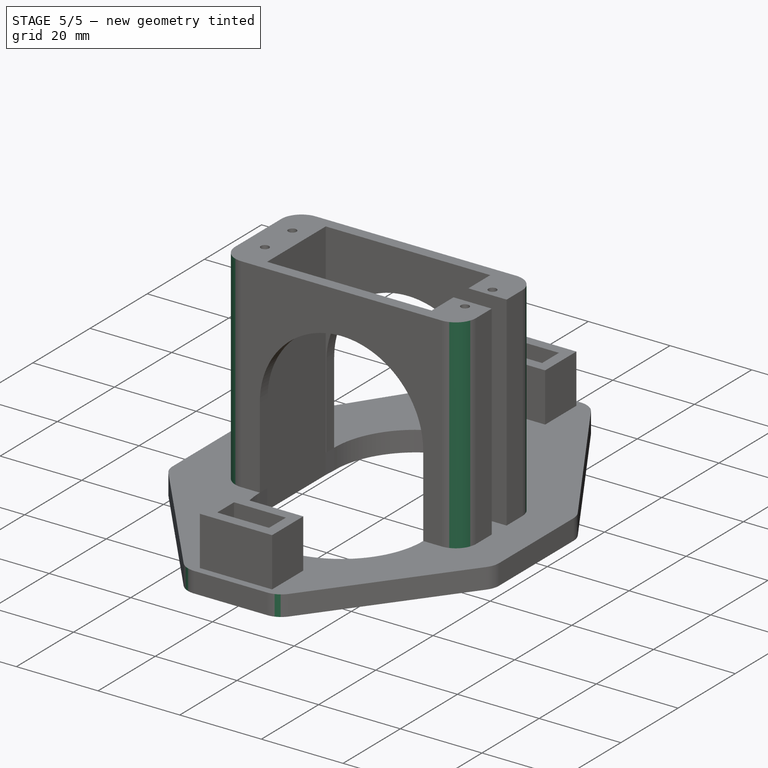
[diagram: stage 5 of 5 — iso view after this stage's code; geometry added in this stage tinted green]
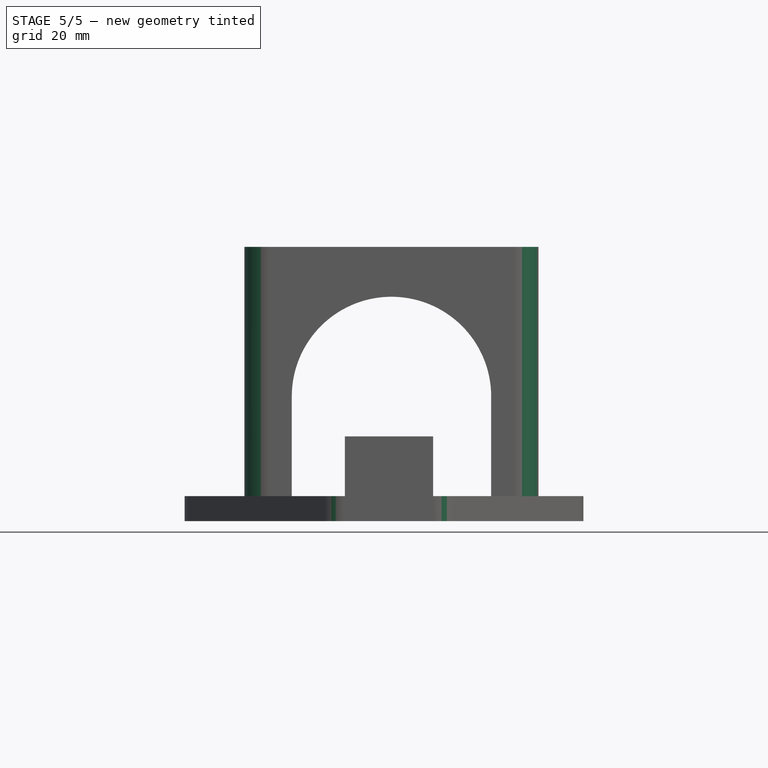
[diagram: stage 5 of 5 — front view after this stage's code; geometry added in this stage tinted green]
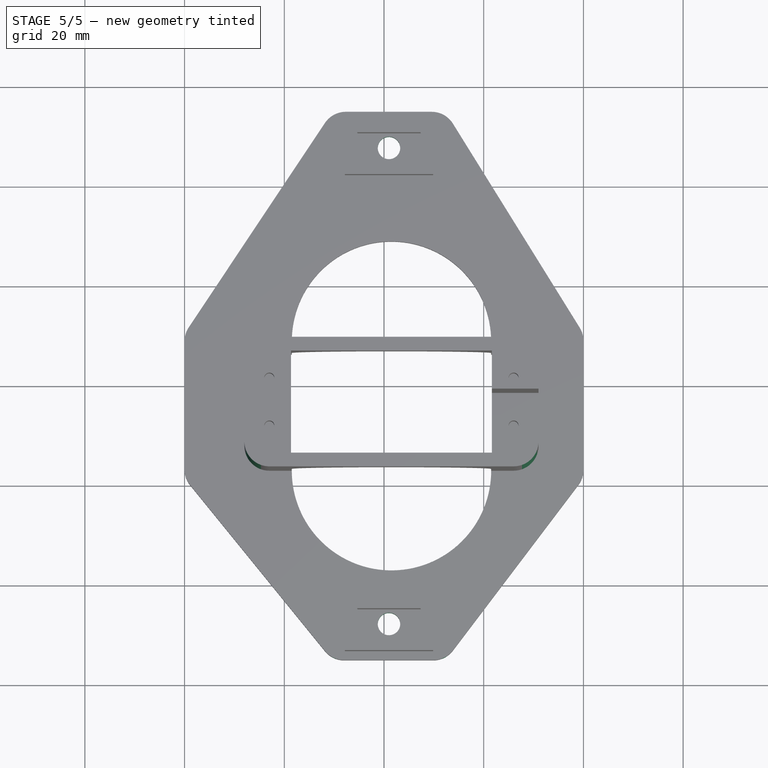
[diagram: stage 5 of 5 — top view after this stage's code; geometry added in this stage tinted green]
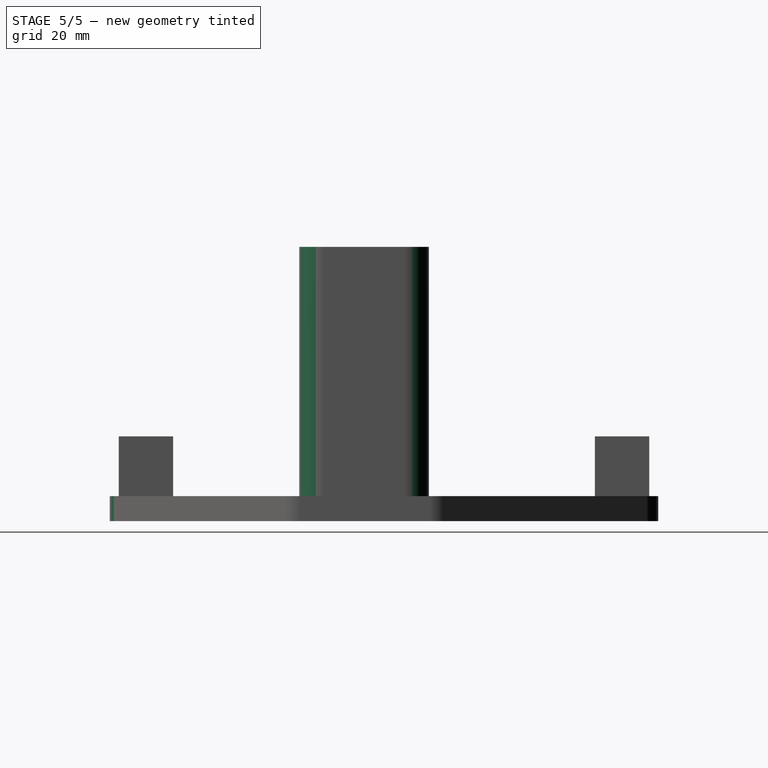
[diagram: stage 5 of 5 — right view after this stage's code; geometry added in this stage tinted green]
FEATURE [PartDesign::Fillet] Fillet
  Base = -> Pocket007 [Edge20,Edge49,Edge2,Edge4,Edge48,Edge50,Edge46,Edge47]
  BaseFeature = -> Pocket007
  Radius = 5
  SupportTransform = false
  UseAllEdges = false
FEATURE [PartDesign::Fillet] Fillet001
  Base = -> Fillet [Edge102,Edge116,Edge104,Edge111]
  BaseFeature = -> Fillet
  Radius = 5
  SupportTransform = false
  UseAllEdges = false
FEATURE [Sketcher::SketchObject] Sketch012
  ExternalGeometry = -> [Fillet001]
  FullyConstrained = true
  MapMode = 5
  Placement = pos=(0,0,5) rot=(0,0,1;0rad)
  Support = -> [Fillet001]
  sketch-geometry (10):
    g0: Circle CenterX=1 CenterY=47.75 CenterZ=0 NormalX=0 NormalY=0 NormalZ=1 AngleXU=0 Radius=2.25
    g1: Circle CenterX=1 CenterY=-47.75 CenterZ=0 NormalX=0 NormalY=0 NormalZ=1 AngleXU=0 Radius=2.25
    g2: LineSegment StartX=1 StartY=-47.75 StartZ=0 EndX=7.35 EndY=-47.75 EndZ=0
    g3: LineSegment StartX=1 StartY=-47.75 StartZ=0 EndX=-5.35 EndY=-47.75 EndZ=0
    g4: LineSegment StartX=1 StartY=47.75 StartZ=0 EndX=1 EndY=50.7 EndZ=0
    g5: LineSegment StartX=1 StartY=47.75 StartZ=0 EndX=1 EndY=44.8 EndZ=0
    g6: LineSegment StartX=1 StartY=47.75 StartZ=0 EndX=7.35 EndY=47.75 EndZ=0
    g7: LineSegment StartX=1 StartY=47.75 StartZ=0 EndX=-5.35 EndY=47.75 EndZ=0
    g8: LineSegment StartX=1 StartY=-47.75 StartZ=0 EndX=1 EndY=-44.8 EndZ=0
    g9: LineSegment StartX=1 StartY=-47.75 StartZ=0 EndX=1 EndY=-50.7 EndZ=0
  constraints (30):
    c: Equal(g0,g1)
    c: Coincident(g2,g1)
    c: PointOnObject(g2,g-5)
    c: Horizontal(g2)
    c: Coincident(g3,g1)
    c: PointOnObject(g3,g-6)
    c: Horizontal(g3)
    c: Coincident(g4,g0)
    c: PointOnObject(g4,g-7)
    c: Vertical(g4)
    c: Coincident(g5,g0)
    c: PointOnObject(g5,g-9)
    c: Vertical(g5)
    c: Coincident(g6,g0)
    c: PointOnObject(g6,g-10)
    c: Horizontal(g6)
    c: Coincident(g7,g0)
    c: Horizontal(g7)
    c: Equal(g6,g7)
    c: Equal(g4,g5)
    c: Vertical(g1,g0)
    c: Equal(g2,g3)
    c: Coincident(g8,g1)
    c: PointOnObject(g8,g-3)
    c: Vertical(g8)
    c: Coincident(g9,g1)
    c: PointOnObject(g9,g-4)
    c: Vertical(g9)
    c: Equal(g8,g9)
    c: Diameter(g1) = 4.5
FEATURE [PartDesign::Pocket] Pocket008
  BaseFeature = -> Fillet001
  Direction = (0,0,-1)
  Length = 5
  Length2 = 5
  Profile = -> Sketch012
  ReferenceAxis = -> Sketch012 [N_Axis]
  Type = 0
FEATURE [PartDesign::Body] Body  label="Support_servo"
  Group = -> [Sketch,Pad,Sketch001,Pad001,Sketch002,Pad002,Sketch003,Pocket,Sketch004,Pocket001,Sketch005,Pocket002,Sketch006,Pad003,Sketch007,Pocket003,Sketch008,Pocket004,Sketch009,Pocket005,Sketch010,Pocket006,Sketch011,Pocket007,Fillet,Fillet001,Sketch012,Pocket008]
  Origin = -> Origin
  Tip = -> Pocket008
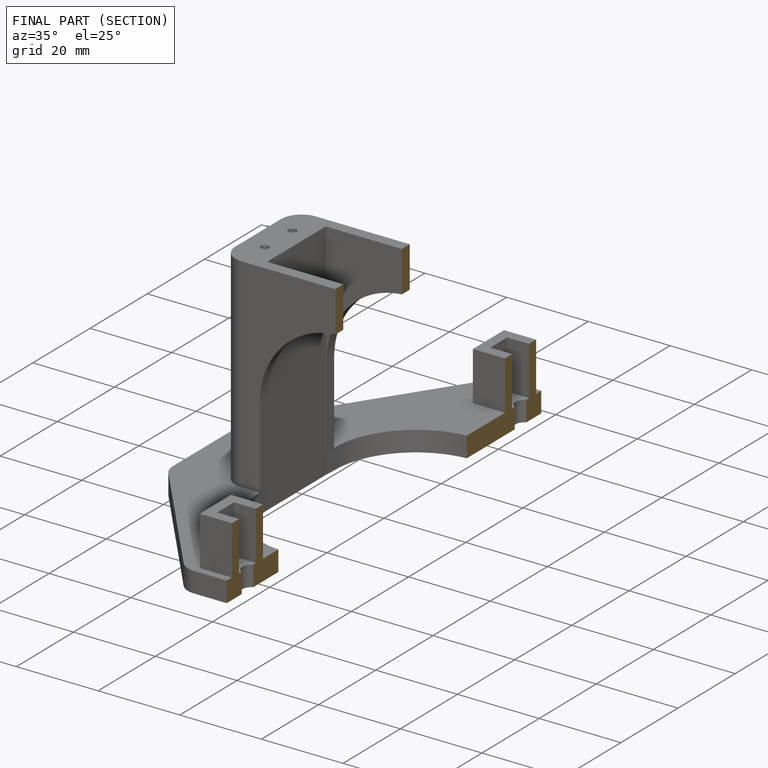
[diagram: finished part — half-section view (interior)]
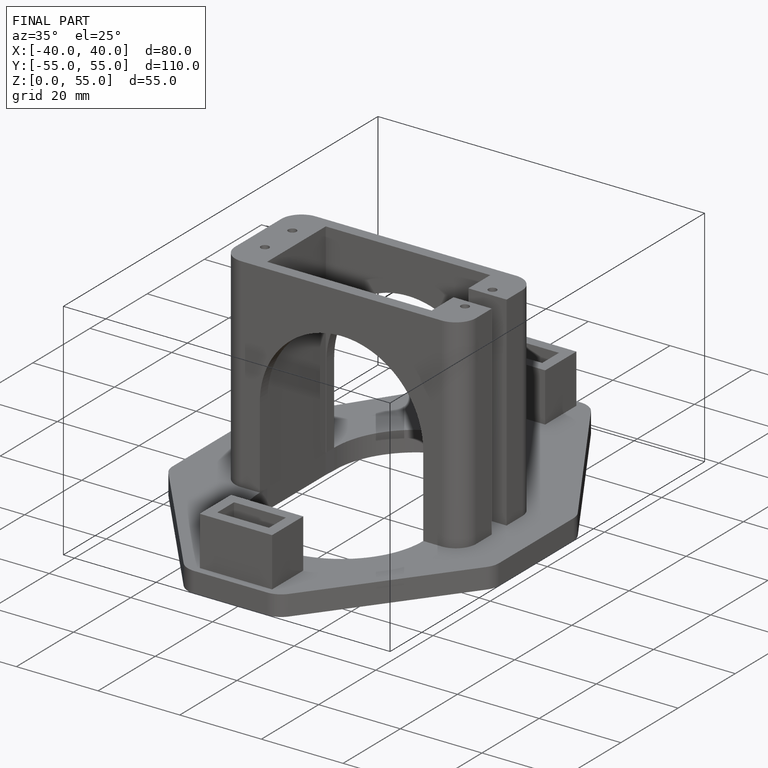
[diagram: finished part — iso view with bounding-box wireframe]
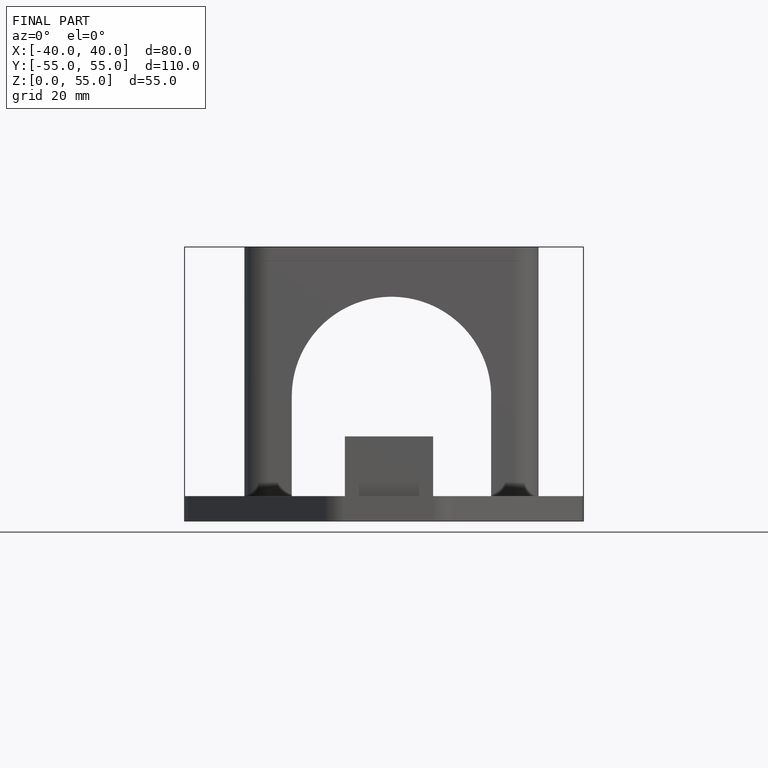
[diagram: finished part — front view with bounding-box wireframe]
